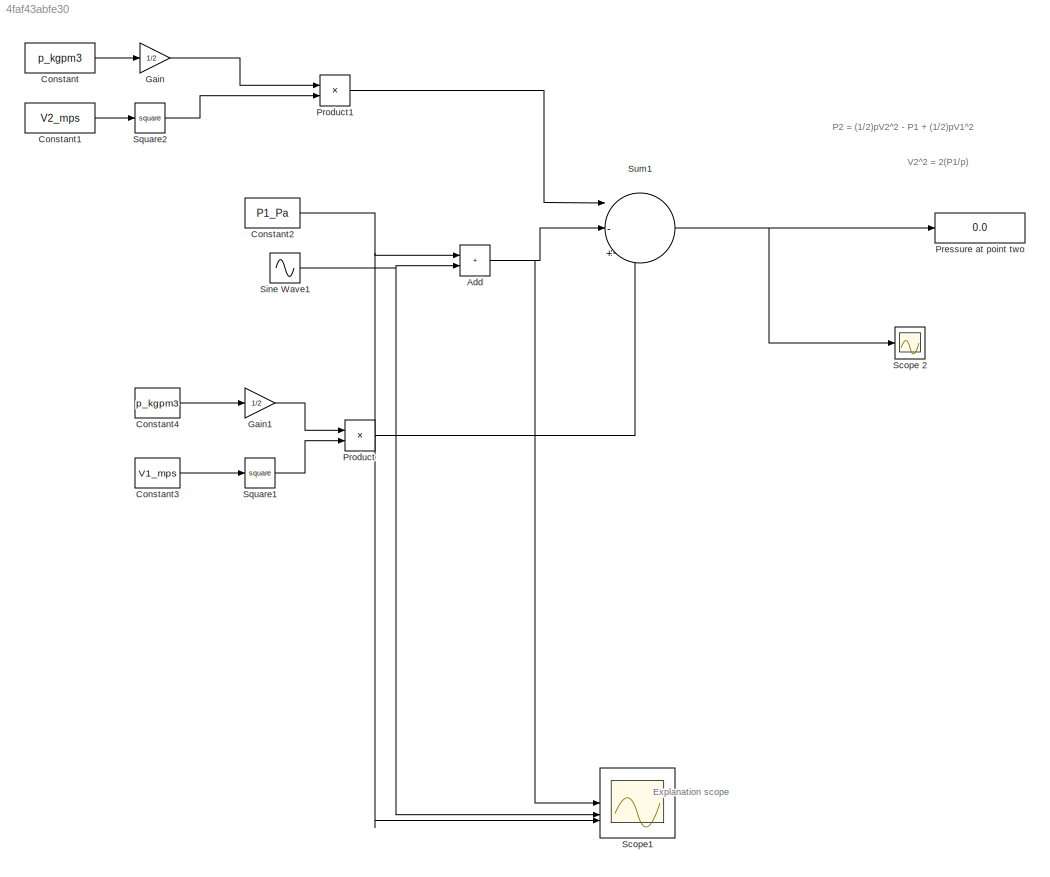
MODEL slx_4faf43abfe30
KIND model
CONFIG AbsTol = auto
CONFIG EnableMultiTasking = off
CONFIG FixedStep = auto
CONFIG MaxStep = auto
CONFIG MinStep = auto
CONFIG RelTol = 1e-3
CONFIG SampleTimeConstraint = Unconstrained
CONFIG SolverName = VariableStepAuto
CONFIG StartTime = 0.0
CONFIG StopTime = 10.0
BLOCK [Sum] Add
  IconShape = rectangular
BLOCK [Constant] Constant
  Value = p_kgpm3
BLOCK [Constant] Constant1
  Value = V2_mps
BLOCK [Constant] Constant2
  Value = P1_Pa
BLOCK [Constant] Constant3
  Value = V1_mps
BLOCK [Constant] Constant4
  Value = p_kgpm3
BLOCK [Gain] Gain
  Gain = 1/2
BLOCK [Gain] Gain1
  Gain = 1/2
BLOCK [Display] Pressure at point two
  Decimation = 1
  Format = long
BLOCK [Product] Product
BLOCK [Product] Product1
BLOCK [Scope] Scope 2
  Floating = off
  NumInputPorts = 1
  ScopeSpecificationString = Simulink.scopes.TimeScopeBlockCfg('CurrentConfiguration', extmgr.ConfigurationSet(extmgr.Configuration('Core','General UI',true),extmgr.Configuration('Core','Source UI',true),extmgr.Configuration('Sources','WiredSimulink',true,'DataLoggingVariableName','ScopeData2'),extmgr.Configuration('Visuals','Time Domain',true,'SerializedDisplays',{struct('MinYLimReal','15233.43437','MaxYLimReal','15235.92904...<+1568ch>
BLOCK [Scope] Scope1
  Floating = off
  NumInputPorts = 3
  ScopeSpecificationString = Simulink.scopes.TimeScopeBlockCfg('CurrentConfiguration', extmgr.ConfigurationSet(extmgr.Configuration('Core','General UI',true),extmgr.Configuration('Core','Source UI',true),extmgr.Configuration('Sources','WiredSimulink',true,'DataLoggingVariableName','ScopeData1'),extmgr.Configuration('Visuals','Time Domain',true,'SerializedDisplays',{struct('MinYLimReal','-1200.36869','MaxYLimReal','399.23201',...<+1554ch>
BLOCK [Sin] Sine Wave1
  SampleTime = 0
BLOCK [Math] Square1
  Operator = square
BLOCK [Math] Square2
  Operator = square
BLOCK [Sum] Sum1
  Inputs = |-++
ANNOTATION (root): Explanation scope
ANNOTATION (root): P2 = (1/2)pV2^2 - P1 + (1/2)pV1^2
ANNOTATION (root): V2^2 = 2(P1/p)
NET Add:1 -> Scope1:1, Sum1:2
LINE Constant1:1 -> Square2:1
NET Constant2:1 -> Add:1, Scope1:3
LINE Constant3:1 -> Square1:1
LINE Constant4:1 -> Gain1:1
LINE Constant:1 -> Gain:1
LINE Gain1:1 -> Product:1
LINE Gain:1 -> Product1:1
LINE Product1:1 -> Sum1:1
LINE Product:1 -> Sum1:3
NET Sine Wave1:1 -> Add:2, Scope1:2
LINE Square1:1 -> Product:2
LINE Square2:1 -> Product1:2
NET Sum1:1 -> Pressure at point two:1, Scope 2:1
note: NET lines group one-source signal fan-out (src -> all destinations, sorted); 1:1 wires keep LINE
